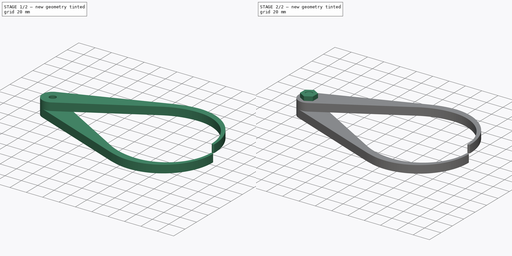
[diagram: build sequence overview — one tinted view per stage of 2, left to right]
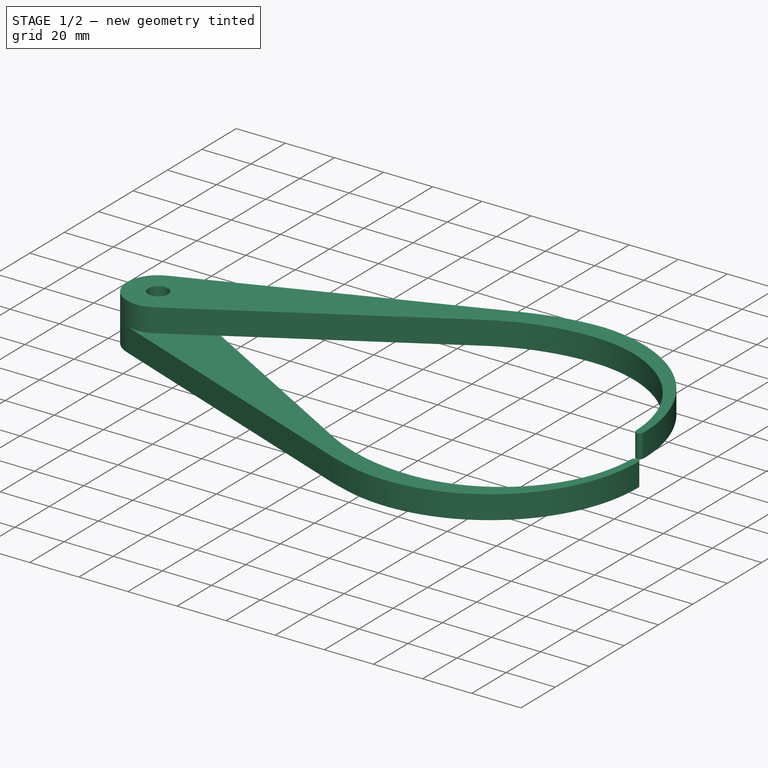
[diagram: stage 1 of 2 — iso view after this stage's code; geometry added in this stage tinted green]
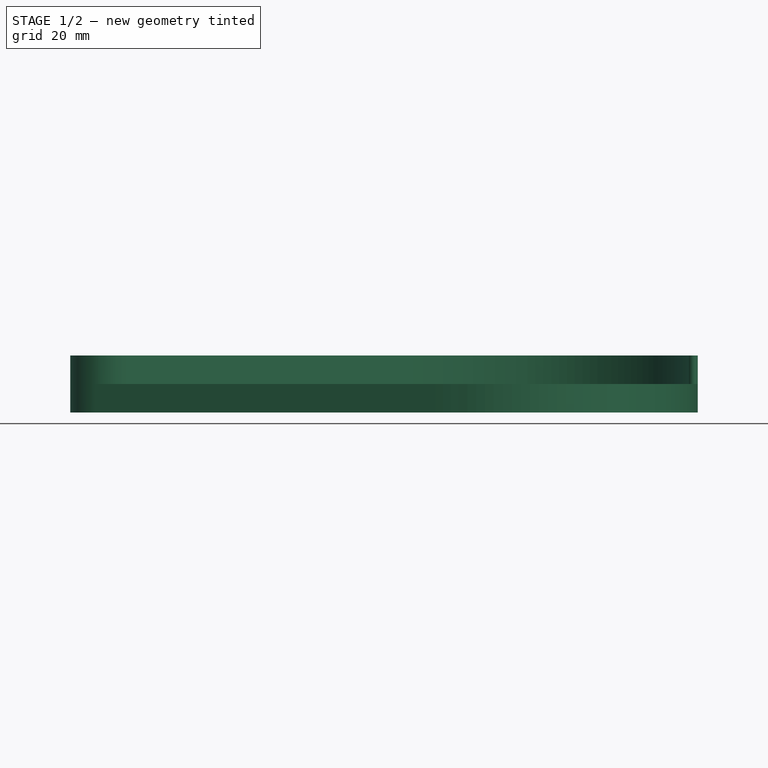
[diagram: stage 1 of 2 — front view after this stage's code; geometry added in this stage tinted green]
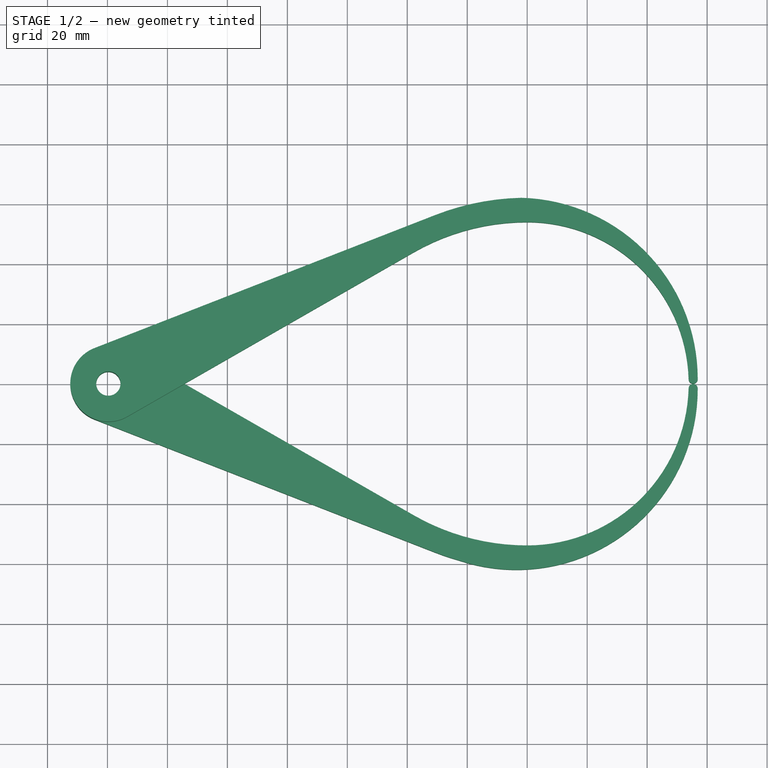
[diagram: stage 1 of 2 — top view after this stage's code; geometry added in this stage tinted green]
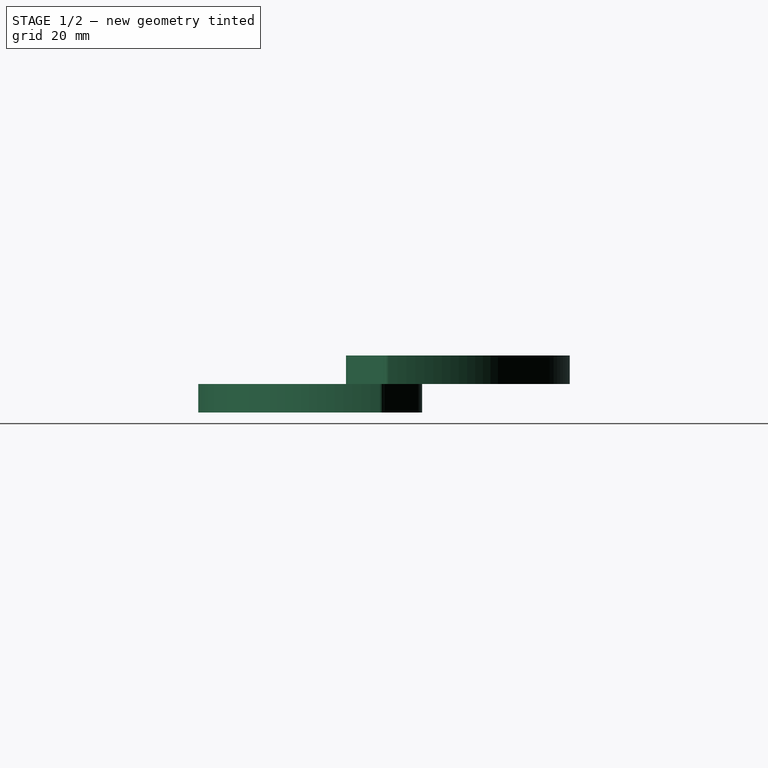
[diagram: stage 1 of 2 — right view after this stage's code; geometry added in this stage tinted green]
FCSTD DOCUMENT  (FreeCAD 0.17R9652 (Git))
Label: Moderate
License: All rights reserved
LicenseURL: http://en.wikipedia.org/wiki/All_rights_reserved
objects: Sketcher::SketchObject×4, PartDesign::Pad×3, PartDesign::Revolution×1, PartDesign::Plane×1, PartDesign::Body×1
note: 14 computed .brp shape members not serialized (recipe doc carries the construction recipe); baked Part::Feature solids carry a one-line shape summary decoded from their .brp

FEATURE [Sketcher::SketchObject] Sketch
  MapMode = 5
  Support = -> [XY_Plane]
  sketch-geometry (9):
    g0: ArcOfCircle CenterX=-139.7 CenterY=0 CenterZ=0 NormalX=0 NormalY=0 NormalZ=1 Radius=12.7 StartAngle=1.94302 EndAngle=5.23319
    g1: ArcOfCircle CenterX=-3.57632 CenterY=1.524 CenterZ=0 NormalX=0 NormalY=0 NormalZ=1 Radius=60.452 StartAngle=6.28278 EndAngle=7.82685
    g2: ArcOfCircle CenterX=0 CenterY=0 CenterZ=0 NormalX=0 NormalY=0 NormalZ=1 Radius=53.848 StartAngle=0.0270955 EndAngle=1.5708
    g3: ArcOfCircle CenterX=55.3517 CenterY=1.50015 CenterZ=0 NormalX=0 NormalY=0 NormalZ=1 Radius=1.524 StartAngle=3.16869 EndAngle=6.28278
    g4: LineSegment StartX=-144.319 StartY=11.8303 StartZ=0 EndX=-30.6688 EndY=56.2014 EndZ=0
    g5: LineSegment StartX=-133.381 StartY=-11.0162 StartZ=0 EndX=-37.9153 EndY=43.7454 EndZ=0
    g6: ArcOfCircle CenterX=0 CenterY=-22.352 CenterZ=0 NormalX=0 NormalY=0 NormalZ=1 Radius=84.328 StartAngle=1.59376 EndAngle=1.94302
    g7: ArcOfCircle CenterX=0 CenterY=-22.352 CenterZ=0 NormalX=0 NormalY=0 NormalZ=1 Radius=76.2 StartAngle=1.5708 EndAngle=2.0916
    g8: Circle CenterX=-139.7 CenterY=0 CenterZ=0 NormalX=0 NormalY=0 NormalZ=1 Radius=4.064
  constraints (31):
    c: PointOnObject(g0,g-1)
    c: DistanceX(g0,g-1) = 139.7
    c: DistanceY(g1) = 1.524
    c: DistanceX(g1,g-1) = 3.57632
    c: Coincident(g2,g-1)
    c: Radius(g1) = 60.452
    c: Radius(g2) = 53.848
    c: Coincident(g3,g2)
    c: Radius(g3) = 1.524
    c: Coincident(g1,g3)
    c: Tangent(g3,g1)
    c: Tangent(g3,g2)
    c: Tangent(g4,g0)
    c: Coincident(g0,g4)
    c: Coincident(g0,g5)
    c: Radius(g0) = 12.7
    c: Coincident(g0,g5)
    c: Tangent(g5,g0)
    c: PointOnObject(g6,g-2)
    c: Coincident(g7,g6)
    c: Radius(g6) = 84.328
    c: Radius(g7) = 76.2
    c: Coincident(g5,g7)
    c: Coincident(g6,g4)
    c: Coincident(g1,g6)
    c: Coincident(g2,g7)
    c: DistanceY(g6) = -22.352
    c: Tangent(g7,g5)
    c: Tangent(g6,g4)
    c: Coincident(g8,g0)
    c: Radius(g8) = 4.064
FEATURE [PartDesign::Pad] Pad
  Length = 9.525
  Length2 = 99.9998
  Profile = -> Sketch
  Type = 0
FEATURE [Sketcher::SketchObject] Sketch001
  MapMode = 5
  Support = -> [XY_Plane]
  sketch-geometry (9):
    g0: ArcOfCircle CenterX=-139.7 CenterY=0 CenterZ=0 NormalX=0 NormalY=0 NormalZ=1 Radius=12.7 StartAngle=1.05 EndAngle=4.34017
    g1: ArcOfCircle CenterX=-3.57632 CenterY=-1.524 CenterZ=0 NormalX=0 NormalY=0 NormalZ=1 Radius=60.452 StartAngle=4.3879 EndAngle=6.28359
    g2: ArcOfCircle CenterX=0 CenterY=0 CenterZ=0 NormalX=0 NormalY=0 NormalZ=1 Radius=53.848 StartAngle=4.71239 EndAngle=6.25609
    g3: ArcOfCircle CenterX=55.3517 CenterY=-1.50015 CenterZ=0 NormalX=0 NormalY=0 NormalZ=1 Radius=1.524 StartAngle=0.000404764 EndAngle=3.1145
    g4: LineSegment StartX=-144.319 StartY=-11.8303 StartZ=0 EndX=-30.6687 EndY=-56.2014 EndZ=0
    g5: LineSegment StartX=-133.381 StartY=11.0163 StartZ=0 EndX=-37.9153 EndY=-43.7454 EndZ=0
    g6: ArcOfCircle CenterX=2.74529e-07 CenterY=22.352 CenterZ=0 NormalX=0 NormalY=0 NormalZ=1 Radius=84.328 StartAngle=4.34017 EndAngle=4.43799
    g7: ArcOfCircle CenterX=2.74529e-07 CenterY=22.352 CenterZ=0 NormalX=0 NormalY=0 NormalZ=1 Radius=76.2 StartAngle=4.19159 EndAngle=4.71239
    g8: Circle CenterX=-139.7 CenterY=0 CenterZ=0 NormalX=0 NormalY=0 NormalZ=1 Radius=4.064
  constraints (31):
    c: Radius(g1) = 60.452
    c: Radius(g2) = 53.848
    c: Coincident(g3,g2)
    c: Radius(g3) = 1.524
    c: Coincident(g1,g3)
    c: Tangent(g3,g1)
    c: Tangent(g3,g2)
    c: Tangent(g4,g0)
    c: Coincident(g0,g4)
    c: Coincident(g0,g5)
    c: Radius(g0) = 12.7
    c: Coincident(g0,g5)
    c: Tangent(g5,g0)
    c: Coincident(g7,g6)
    c: Radius(g6) = 84.328
    c: Radius(g7) = 76.2
    c: Coincident(g5,g7)
    c: Coincident(g6,g4)
    c: Coincident(g1,g6)
    c: Coincident(g2,g7)
    c: Tangent(g7,g5)
    c: Tangent(g6,g4)
    c: Coincident(g8,g0)
    c: Radius(g8) = 4.064
    c: DistanceY(g6) = 22.352
    c: DistanceX(g1,g-1) = 3.57632
    c: DistanceY(g1,g-1) = 1.524
    c: Coincident(g2,g-1)
    c: Tangent(g2,g7)
    c: PointOnObject(g0,g-1)
    c: DistanceX(g0) = -139.7
FEATURE [PartDesign::Pad] Pad001
  BaseFeature = -> Pad
  Length = 9.525
  Length2 = 99.9998
  Profile = -> Sketch001
  Reversed = true
  Type = 0
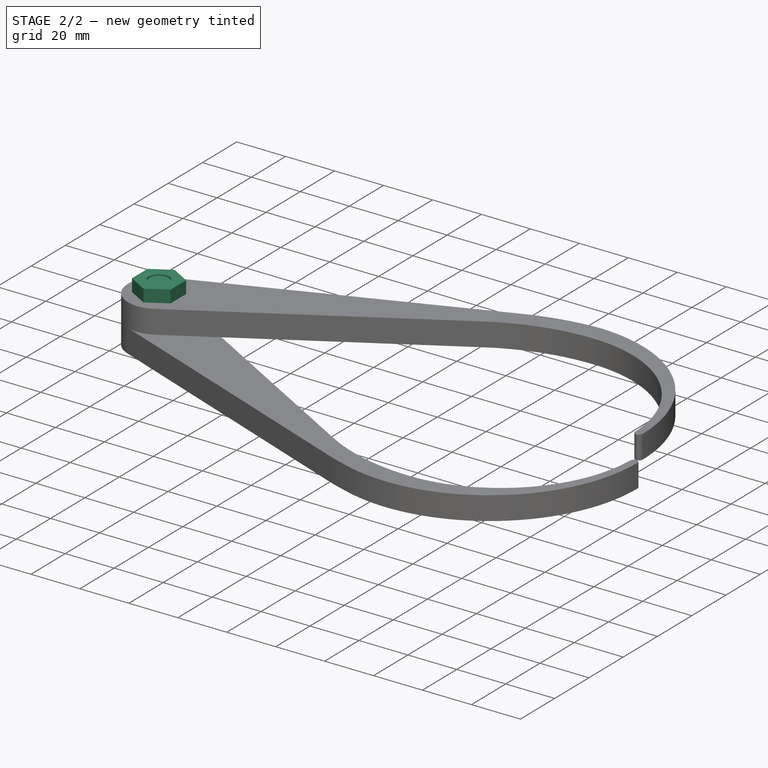
[diagram: stage 2 of 2 — iso view after this stage's code; geometry added in this stage tinted green]
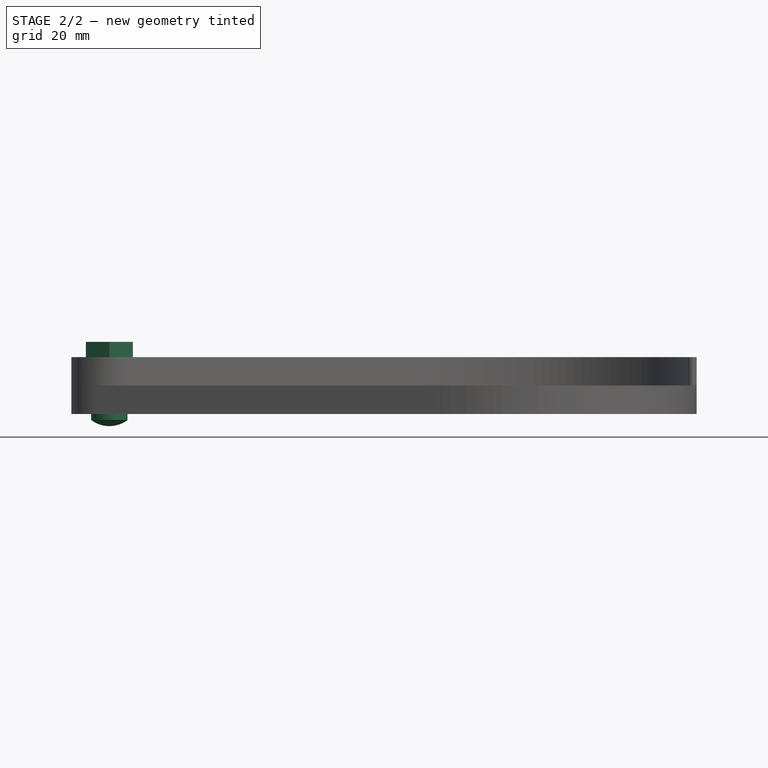
[diagram: stage 2 of 2 — front view after this stage's code; geometry added in this stage tinted green]
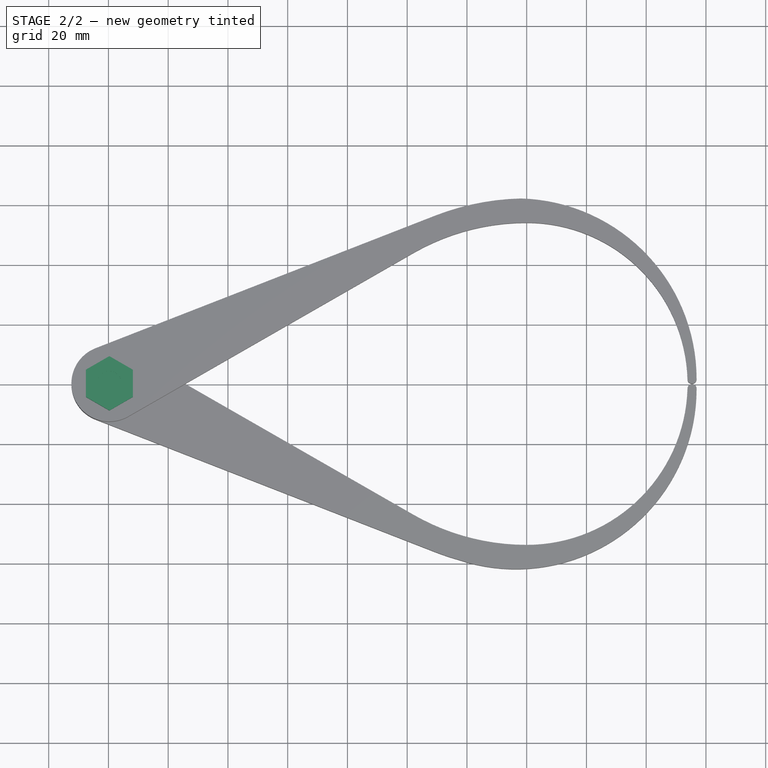
[diagram: stage 2 of 2 — top view after this stage's code; geometry added in this stage tinted green]
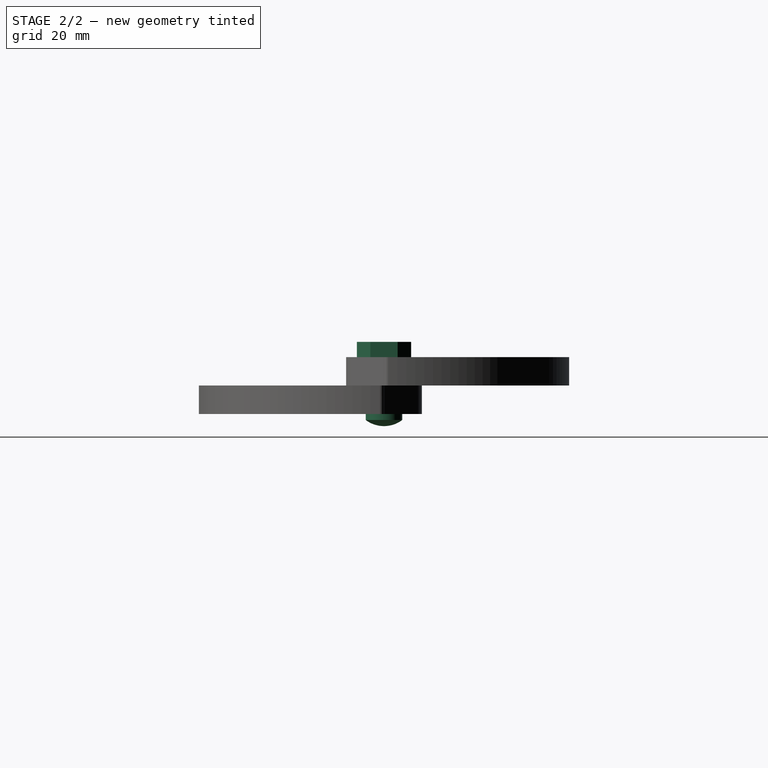
[diagram: stage 2 of 2 — right view after this stage's code; geometry added in this stage tinted green]
FEATURE [Sketcher::SketchObject] Sketch002
  MapMode = 5
  Placement = pos=(0,0,0) rot=(1,0,0;1.5708rad)
  Support = -> [XZ_Plane]
  sketch-geometry (7):
    g0: LineSegment [constr] StartX=-139.7 StartY=63.5 StartZ=0 EndX=-139.7 EndY=-63.5 EndZ=0
    g1: ArcOfCircle CenterX=-139.7 CenterY=-3.429 CenterZ=0 NormalX=0 NormalY=0 NormalZ=1 Radius=10.16 StartAngle=4.71239 EndAngle=5.35589
    g2: LineSegment StartX=-139.7 StartY=-13.589 StartZ=0 EndX=-139.7 EndY=13.97 EndZ=0
    g3: LineSegment StartX=-139.7 StartY=13.97 StartZ=0 EndX=-135.636 EndY=13.97 EndZ=0
    g4: LineSegment StartX=-135.636 StartY=13.97 StartZ=0 EndX=-135.636 EndY=-9.525 EndZ=0
    g5: LineSegment StartX=-135.636 StartY=-9.525 StartZ=0 EndX=-133.604 EndY=-9.525 EndZ=0
    g6: LineSegment StartX=-133.604 StartY=-9.525 StartZ=0 EndX=-133.604 EndY=-11.557 EndZ=0
  constraints (23):
    c: Vertical(g0)
    c: DistanceX(g0) = -139.7
    c: PointOnObject(g1,g0)
    c: PointOnObject(g1,g0)
    c: Coincident(g2,g1)
    c: Vertical(g2)
    c: Coincident(g3,g2)
    c: Horizontal(g3)
    c: Coincident(g3,g4)
    c: Vertical(g4)
    c: Coincident(g4,g5)
    c: Coincident(g5,g6)
    c: Vertical(g6)
    c: Coincident(g1,g6)
    c: Horizontal(g5)
    c: DistanceX(g3,g3) = 4.064
    c: DistanceY(g6,g6) = 2.032
    c: DistanceY(g1,g1) = 2.032
    c: DistanceX(g5,g5) = 2.032
    c: Symmetric(g0,g0,g-1)
    c: DistanceY(g0,g0) = 127
    c: DistanceY(g4) = -9.525
    c: DistanceY(g3) = 13.97
FEATURE [PartDesign::Revolution] Revolution
  Angle = 360
  Axis = (0,0,-127)
  Base = (-139.7,0,63.5)
  BaseFeature = -> Pad001
  Profile = -> Sketch002
  ReferenceAxis = -> Sketch002 [Axis0]
FEATURE [PartDesign::Plane] DatumPlane
  MapMode = 5
  Placement = pos=(0,0,9.525) rot=(0,0,1;0rad)
  Support = -> [XY_Plane]
  superPlacement = pos=(0,0,9.525) rot=(0,0,1;0rad)
FEATURE [Sketcher::SketchObject] Sketch003
  MapMode = 5
  Placement = pos=(0,0,9.525) rot=(0,0,1;0rad)
  Support = -> [DatumPlane]
  sketch-geometry (8):
    g0: LineSegment StartX=-131.826 StartY=4.54606 StartZ=0 EndX=-139.7 EndY=9.09211 EndZ=0
    g1: LineSegment StartX=-139.7 StartY=9.09211 StartZ=0 EndX=-147.574 EndY=4.54606 EndZ=0
    g2: LineSegment StartX=-147.574 StartY=4.54606 StartZ=0 EndX=-147.574 EndY=-4.54606 EndZ=0
    g3: LineSegment StartX=-147.574 StartY=-4.54606 StartZ=0 EndX=-139.7 EndY=-9.09211 EndZ=0
    g4: LineSegment StartX=-139.7 StartY=-9.09211 StartZ=0 EndX=-131.826 EndY=-4.54606 EndZ=0
    g5: LineSegment StartX=-131.826 StartY=-4.54606 StartZ=0 EndX=-131.826 EndY=4.54606 EndZ=0
    g6: Circle [constr] CenterX=-139.7 CenterY=0 CenterZ=0 NormalX=0 NormalY=0 NormalZ=1 Radius=9.09211
    g7: Circle CenterX=-139.7 CenterY=0 CenterZ=0 NormalX=0 NormalY=0 NormalZ=1 Radius=4.064
  constraints (19):
    c: Coincident(g0,g1)
    c: Coincident(g1,g2)
    c: Coincident(g2,g3)
    c: Coincident(g3,g4)
    c: Coincident(g4,g5)
    c: Coincident(g5,g0)
    c: Equal(g0, g1-g5) x5
    c: PointOnObject(g0,g6)
    c: PointOnObject(g1,g6)
    c: PointOnObject(g2,g6)
    c: PointOnObject(g3,g6)
    c: PointOnObject(g4,g6)
    c: PointOnObject(g5,g6)
    c: PointOnObject(g6,g-1)
    c: Coincident(g7,g6)
    c: Radius(g7) = 4.064
    c: Vertical(g2)
    c: DistanceX(g1,g0) = 15.748
    c: DistanceX(g6) = -139.7
FEATURE [PartDesign::Pad] Pad002
  BaseFeature = -> Revolution
  Length = 5.08
  Length2 = 99.9998
  Profile = -> Sketch003
  Type = 0
FEATURE [PartDesign::Body] Body
  Group = -> [Sketch,Pad,Sketch001,Pad001,Sketch002,Revolution,DatumPlane,Sketch003,Pad002]
  Origin = -> BodyOrigin
  Tip = -> Pad002
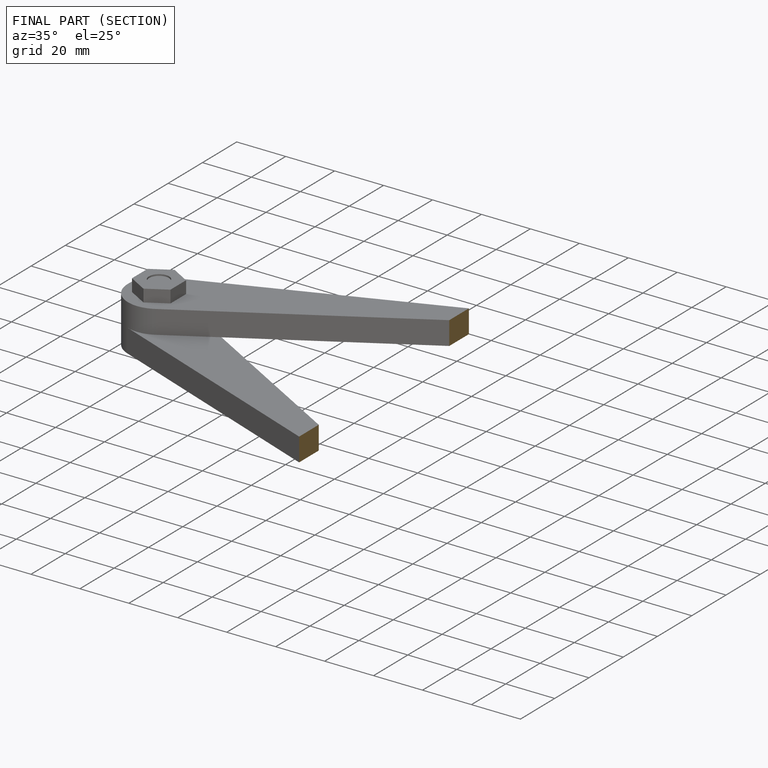
[diagram: finished part — half-section view (interior)]
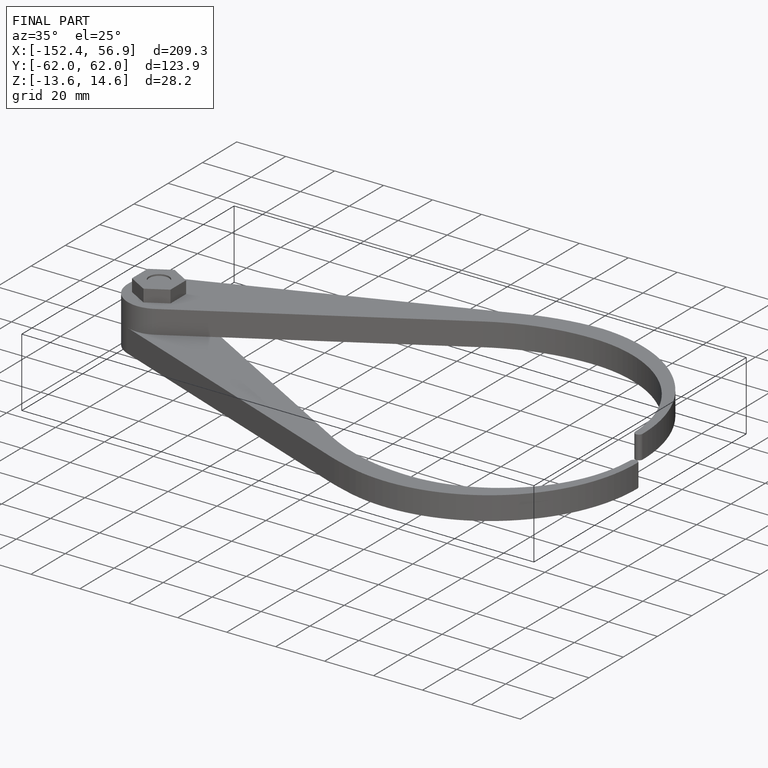
[diagram: finished part — iso view with bounding-box wireframe]
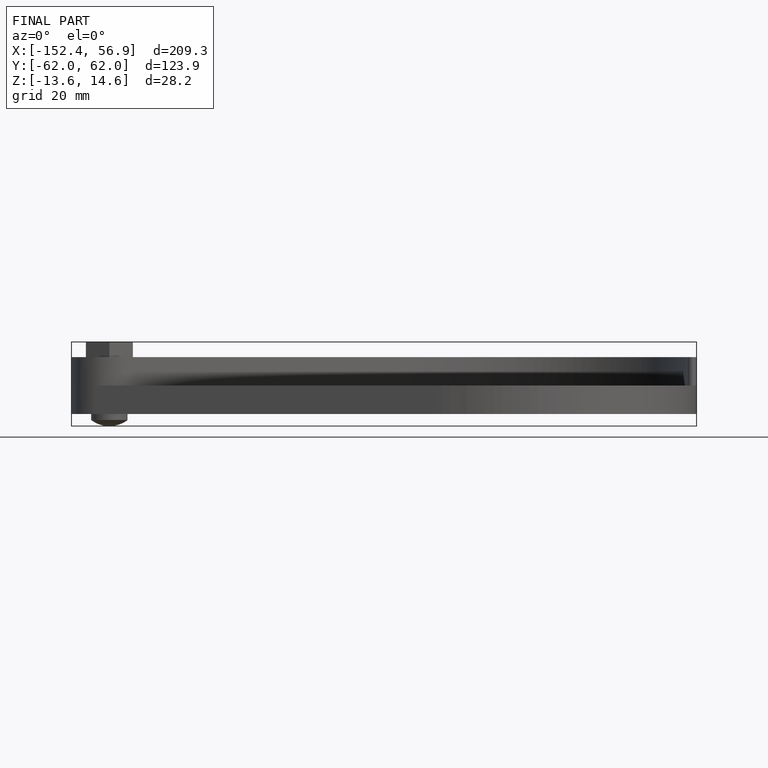
[diagram: finished part — front view with bounding-box wireframe]
